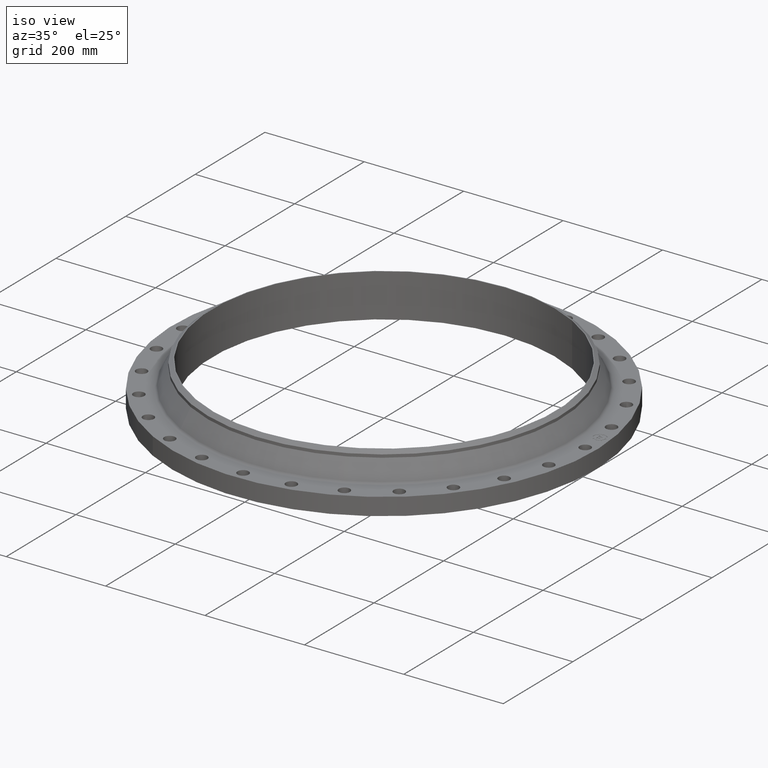
[diagram: clean part render]
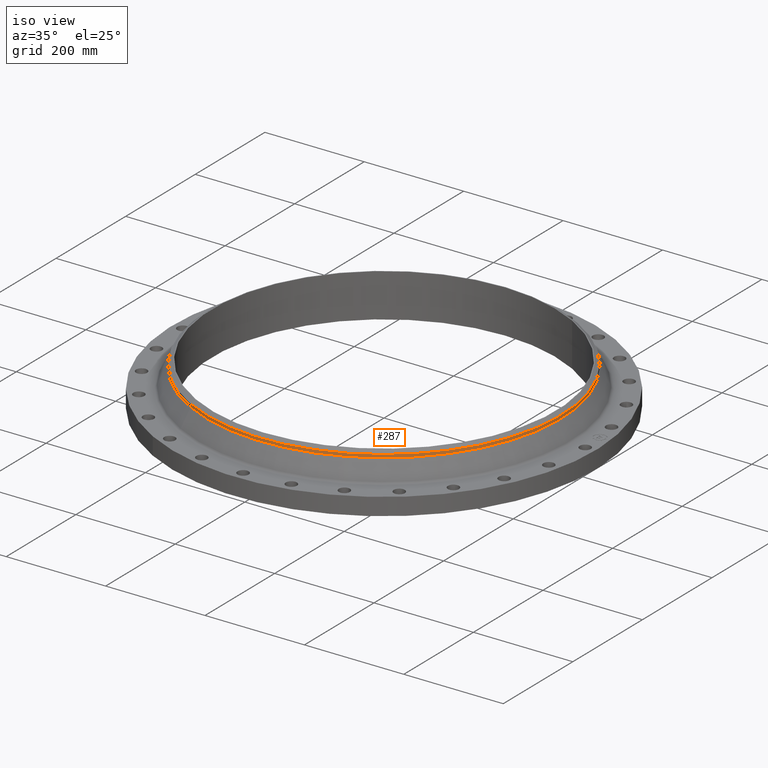
[diagram: same view with one face highlighted and labeled with its STEP entity id]
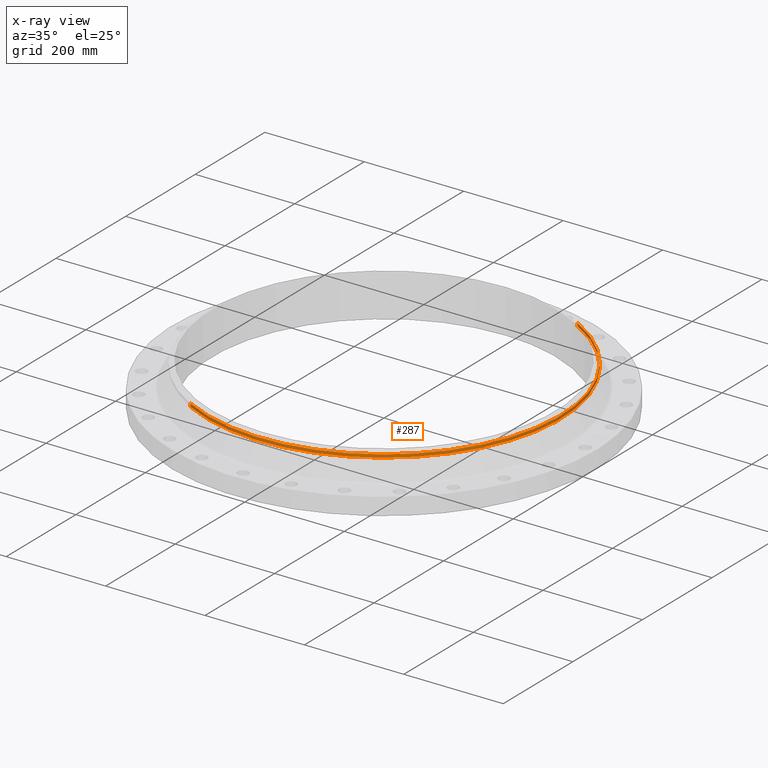
[diagram: x-ray of the same camera — body ghosted, the highlighted face saturated]
A machine part, iso view. The second image highlights one B-rep face of the part: STEP entity #287.
The next image is the same camera in x-ray: the body ghosted, the highlighted face saturated — about 0% of this face is hidden behind the body in this view.
In plain terms, the highlighted cylindrical surface (partial cylindrical patch) has radius 355.6 mm, axis along (0, 0, -1).
Its self-contained STEP definition (entity closure, byte-faithful):
#228=AXIS2_PLACEMENT_3D('Circle Axis2P3D',#226,#227,$) ;
#260=AXIS2_PLACEMENT_3D('Cylinder Axis2P3D',#257,#258,#259) ;
#278=AXIS2_PLACEMENT_3D('Circle Axis2P3D',#276,#277,$) ;
#223=CARTESIAN_POINT('Vertex',(6.71195754049,12.2861558665,2.90398984383)) ;
#226=CARTESIAN_POINT('Axis2P3D Location',(0.,0.,2.90398984383)) ;
#230=CARTESIAN_POINT('Vertex',(-6.71195754049,-12.2861558665,2.90398984383)) ;
#257=CARTESIAN_POINT('Axis2P3D Location',(0.,0.,1.70875000001)) ;
#262=CARTESIAN_POINT('Line Origine',(-6.71195754049,-12.2861558665,3.02210008005)) ;
#266=CARTESIAN_POINT('Vertex',(-6.71195754049,-12.2861558665,3.14021031627)) ;
#269=CARTESIAN_POINT('Line Origine',(6.71195754049,12.2861558665,3.02210008005)) ;
#273=CARTESIAN_POINT('Vertex',(6.71195754049,12.2861558665,3.14021031627)) ;
#276=CARTESIAN_POINT('Axis2P3D Location',(0.,0.,3.14021031627)) ;
#227=DIRECTION('Axis2P3D Direction',(0.,0.,-0.0393700787402)) ;
#258=DIRECTION('Axis2P3D Direction',(0.,0.,-0.0393700787402)) ;
#259=DIRECTION('Axis2P3D XDirection',(-0.0188750212049,-0.0345504945626,0.)) ;
#263=DIRECTION('Vector Direction',(0.,0.,-0.0393700787402)) ;
#270=DIRECTION('Vector Direction',(0.,0.,-0.0393700787402)) ;
#277=DIRECTION('Axis2P3D Direction',(0.,0.,-0.0393700787402)) ;
#264=VECTOR('Line Direction',#263,0.0393700787402) ;
#271=VECTOR('Line Direction',#270,0.0393700787402) ;
#282=ORIENTED_EDGE('',*,*,#268,.F.) ;
#283=ORIENTED_EDGE('',*,*,#232,.F.) ;
#284=ORIENTED_EDGE('',*,*,#275,.T.) ;
#285=ORIENTED_EDGE('',*,*,#280,.T.) ;
#287=ADVANCED_FACE('PartBody',(#286),#261,.T.) ;
#229=CIRCLE('generated circle',#228,14.0000000001) ;
#279=CIRCLE('generated circle',#278,14.0000000001) ;
#261=CYLINDRICAL_SURFACE('generated cylinder',#260,14.0000000001) ;
#232=EDGE_CURVE('',#224,#231,#229,.T.) ;
#268=EDGE_CURVE('',#231,#267,#265,.F.) ;
#275=EDGE_CURVE('',#224,#274,#272,.F.) ;
#280=EDGE_CURVE('',#274,#267,#279,.T.) ;
#281=EDGE_LOOP('',(#282,#283,#284,#285)) ;
#286=FACE_OUTER_BOUND('',#281,.T.) ;
#265=LINE('Line',#262,#264) ;
#272=LINE('Line',#269,#271) ;
#224=VERTEX_POINT('',#223) ;
#231=VERTEX_POINT('',#230) ;
#267=VERTEX_POINT('',#266) ;
#274=VERTEX_POINT('',#273) ;